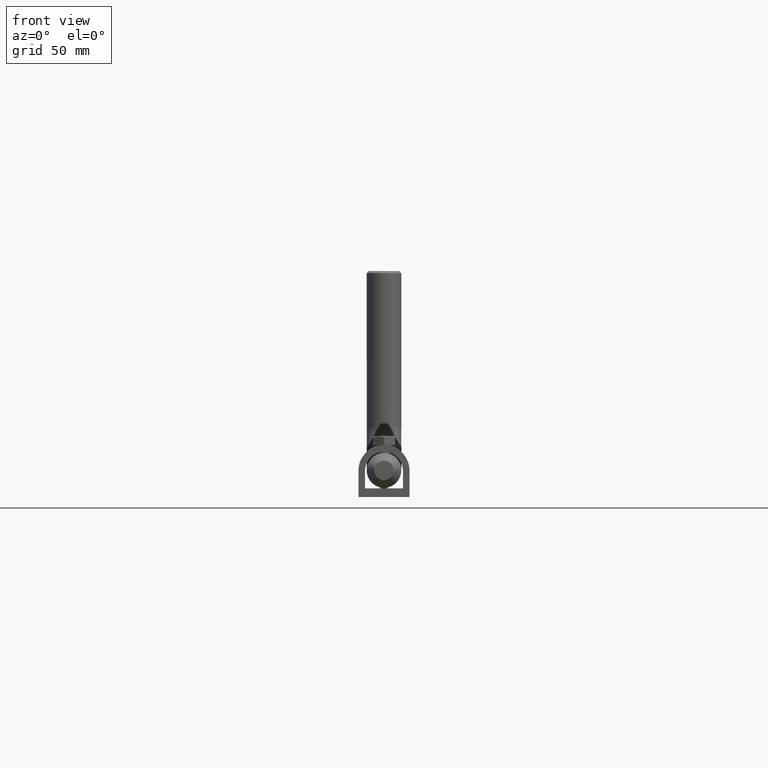
[diagram: clean part render]
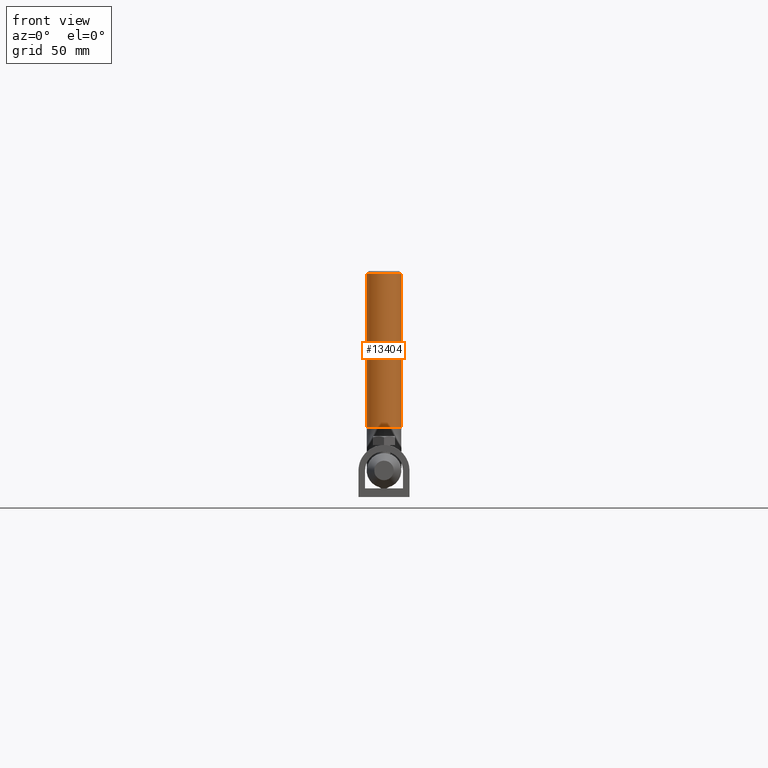
[diagram: same view with one face highlighted and labeled with its STEP entity id]
A machine part, front view. The second image highlights one B-rep face of the part: STEP entity #13404.
In plain terms, the highlighted cylindrical surface (bore or boss wall) has radius 8 mm, axis along (0, 0, 1).
Its self-contained STEP definition (entity closure, byte-faithful):
#495 = CARTESIAN_POINT ( 'NONE',  ( 0.000000000000000000, 312.0000000000000000, 91.00000000000005684 ) ) ;
#572 = AXIS2_PLACEMENT_3D ( 'NONE', #495, #12877, #4635 ) ;
#2507 = DIRECTION ( 'NONE',  ( 0.000000000000000000, -1.734723475976805615E-16, 1.000000000000000000 ) ) ;
#3911 = AXIS2_PLACEMENT_3D ( 'NONE', #17219, #5839, #11624 ) ;
#4001 = CIRCLE ( 'NONE', #14523, 8.000000000000007105 ) ;
#4539 = EDGE_CURVE ( 'NONE', #13370, #13370, #17082, .T. ) ;
#4570 = EDGE_LOOP ( 'NONE', ( #8955 ) ) ;
#4635 = DIRECTION ( 'NONE',  ( 1.000000000000000000, 0.000000000000000000, 0.000000000000000000 ) ) ;
#5839 = DIRECTION ( 'NONE',  ( 0.000000000000000000, 0.000000000000000000, 1.000000000000000000 ) ) ;
#7092 = CARTESIAN_POINT ( 'NONE',  ( 8.000000000000000000, 312.0000000000000000, 91.00000000000005684 ) ) ;
#8955 = ORIENTED_EDGE ( 'NONE', *, *, #16469, .T. ) ;
#9442 = DIRECTION ( 'NONE',  ( 0.000000000000000000, -1.000000000000000000, 0.000000000000000000 ) ) ;
#9481 = FACE_OUTER_BOUND ( 'NONE', #9719, .T. ) ;
#9719 = EDGE_LOOP ( 'NONE', ( #16148 ) ) ;
#10403 = CYLINDRICAL_SURFACE ( 'NONE', #3911, 8.000000000000000000 ) ;
#11624 = DIRECTION ( 'NONE',  ( 1.000000000000000000, 0.000000000000000000, 0.000000000000000000 ) ) ;
#12214 = CARTESIAN_POINT ( 'NONE',  ( 0.000000000000000000, 312.0000000000000000, 20.00000000000000355 ) ) ;
#12877 = DIRECTION ( 'NONE',  ( -0.000000000000000000, -0.000000000000000000, -1.000000000000000000 ) ) ;
#13370 = VERTEX_POINT ( 'NONE', #7092 ) ;
#13404 = ADVANCED_FACE ( 'NONE', ( #9481, #15626 ), #10403, .T. ) ;
#14523 = AXIS2_PLACEMENT_3D ( 'NONE', #12214, #2507, #9442 ) ;
#15557 = CARTESIAN_POINT ( 'NONE',  ( 0.000000000000000000, 304.0000000000000000, 20.00000000000000355 ) ) ;
#15626 = FACE_OUTER_BOUND ( 'NONE', #4570, .T. ) ;
#16148 = ORIENTED_EDGE ( 'NONE', *, *, #4539, .T. ) ;
#16415 = VERTEX_POINT ( 'NONE', #15557 ) ;
#16469 = EDGE_CURVE ( 'NONE', #16415, #16415, #4001, .T. ) ;
#17082 = CIRCLE ( 'NONE', #572, 8.000000000000000000 ) ;
#17219 = CARTESIAN_POINT ( 'NONE',  ( 0.000000000000000000, 312.0000000000000000, 20.00000000000000355 ) ) ;